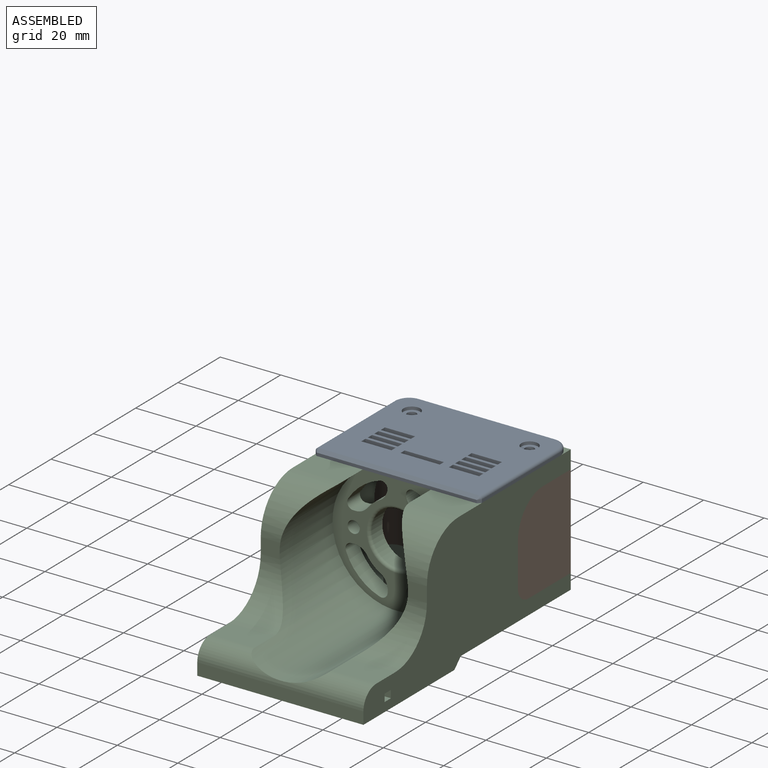
[diagram: assembled view]
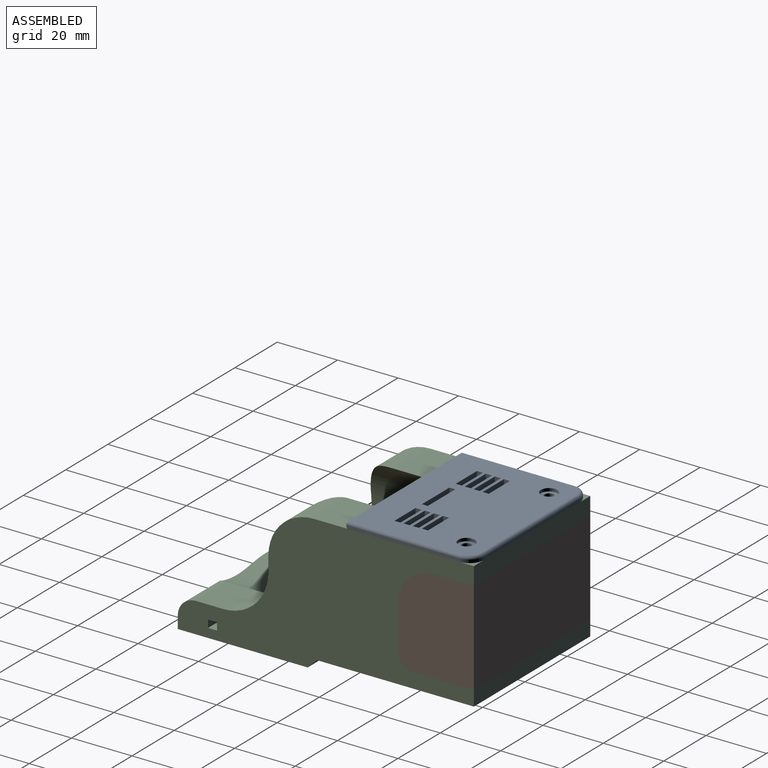
[diagram: assembled view, second angle]
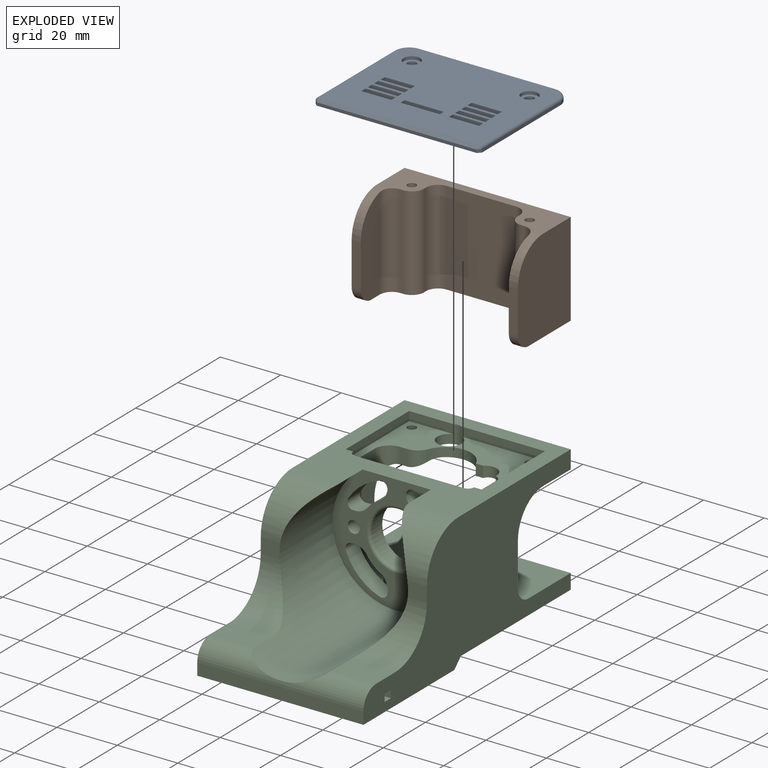
[diagram: exploded view]
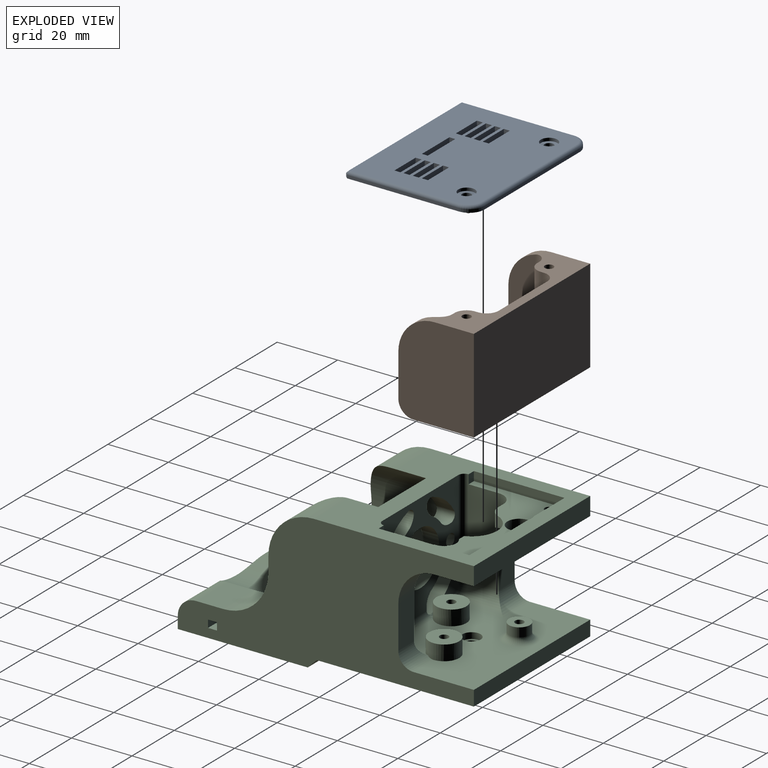
[diagram: exploded view, second angle]
ASSEMBLY  parts=3 mates=2
PART A: 84 faces, bbox 55.8x43.4x7 mm
  f0: cylinder r=1.5mm len=4mm, axis (0,0,-1), area 37.7mm2, adj f3,f82
  f1: cylinder r=1.5mm len=4mm, axis (0,0,-1), area 37.7mm2, adj f3,f80
  f2: plane 53x41mm, normal (0,0,-1), area 1933.4mm2, adj f32,f33,f34,f35,f36,f38,f39,f40
  f3: plane 43x28mm, normal (0,0,1), area 780.3mm2, adj f0,f1,f12,f23,f24,f28,f29,f38
  f4: plane 37x1mm, normal (1,0,0), area 37mm2, adj f7,f19,f36,f79
  f5: plane 37x1mm, normal (-1,0,0), area 37mm2, adj f7,f18,f32,f75
  f6: plane 45x1mm, normal (0,-1,0), area 45mm2, adj f7,f18,f19,f34
  f7: plane 55x43mm, normal (0,0,1), area 1004.1mm2, adj f4,f5,f6,f8,f9,f10,f11,f18
  f8: plane 28x2mm, normal (-1,0,0), area 56mm2, adj f7,f22,f28,f31
  f9: plane 43x2mm, normal (0,-1,0), area 86mm2, adj f7,f25,f29,f31
  f10: plane 28x2mm, normal (1,0,0), area 56mm2, adj f7,f20,f24,f25
  f11: plane 43x2mm, normal (0,1,0), area 86mm2, adj f7,f20,f22,f23
  f12: cylinder r=8.45mm len=16.9mm, axis (0,0,-1), area 53.1mm2, adj f3,f37
  f13: plane 14.9x14.9mm, normal (0,0,1), area 146.1mm2, adj f14,f37
  f14: cylinder r=3mm len=6mm, axis (0,0,1), area 37.7mm2, adj f13,f15
  f15: plane 6x6mm, normal (0,0,1), area 21.2mm2, adj f14,f16
  f16: cylinder r=1.5mm len=3mm, axis (0,0,1), area 9.4mm2, adj f15,f17
  f17: plane 3x3mm, normal (0,0,1), area 7.1mm2, adj f16
  f18: cylinder r=5mm len=5mm, axis (0,0,1), area 7.9mm2, adj f5,f6,f7,f33
  f19: cylinder r=5mm len=5mm, axis (0,0,-1), area 7.9mm2, adj f4,f6,f7,f35
  f20: cylinder r=1mm len=2mm, axis (0,0,-1), area 3.1mm2, adj f7,f10,f11,f21
  f21: sphere r=1mm, area 1.6mm2, adj f20,f23,f24
  f22: cylinder r=1mm len=2mm, axis (0,0,1), area 3.1mm2, adj f7,f8,f11,f26
  f23: cylinder r=1mm len=43mm, axis (1,0,0), area 67.5mm2, adj f3,f11,f21,f26
  f24: cylinder r=1mm len=28mm, axis (0,-1,0), area 44mm2, adj f3,f10,f21,f27
  f25: cylinder r=1mm len=2mm, axis (0,0,1), area 3.1mm2, adj f7,f9,f10,f27
  f26: sphere r=1mm, area 1.6mm2, adj f22,f23,f28
  f27: sphere r=1mm, area 1.6mm2, adj f24,f25,f29
  f28: cylinder r=1mm len=28mm, axis (0,1,0), area 44mm2, adj f3,f8,f26,f30
  f29: cylinder r=1mm len=43mm, axis (-1,0,0), area 67.5mm2, adj f3,f9,f27,f30
  f30: sphere r=1mm, area 1.6mm2, adj f28,f29,f31
  f31: cylinder r=1mm len=2mm, axis (0,0,-1), area 3.1mm2, adj f7,f8,f9,f30
  f32: cylinder r=1mm len=37mm, axis (0,1,0), area 58.1mm2, adj f2,f5,f33,f76
  f33: torus R=4mm, axis (0,0,1), area 11.4mm2, adj f2,f18,f32,f34
  f34: cylinder r=1mm len=45mm, axis (-1,0,0), area 70.7mm2, adj f2,f6,f33,f35
  f35: torus R=4mm, axis (0,0,1), area 11.4mm2, adj f2,f19,f34,f36
  f36: cylinder r=1mm len=37mm, axis (0,-1,0), area 58.1mm2, adj f2,f4,f35,f78
  f37: torus R=7.45mm, axis (0,0,1), area 79.8mm2, adj f12,f13
  f38: plane 10x5mm, normal (0,-1,0), area 50mm2, adj f2,f3,f39,f41
  f39: plane 5x2mm, normal (1,0,0), area 10mm2, adj f2,f3,f38,f40
  f40: plane 10x5mm, normal (0,1,0), area 50mm2, adj f2,f3,f39,f41
  f41: plane 5x2mm, normal (-1,0,0), area 10mm2, adj f2,f3,f38,f40
  f42: plane 10x5mm, normal (0,-1,0), area 50mm2, adj f2,f3,f43,f45
  f43: plane 5x2mm, normal (1,0,0), area 10mm2, adj f2,f3,f42,f44
  f44: plane 10x5mm, normal (0,1,0), area 50mm2, adj f2,f3,f43,f45
  f45: plane 5x2mm, normal (-1,0,0), area 10mm2, adj f2,f3,f42,f44
  f46: plane 5x2mm, normal (-1,0,0), area 10mm2, adj f2,f3,f47,f49
  f47: plane 10x5mm, normal (0,-1,0), area 50mm2, adj f2,f3,f46,f48
  f48: plane 5x2mm, normal (1,0,0), area 10mm2, adj f2,f3,f47,f49
  f49: plane 10x5mm, normal (0,1,0), area 50mm2, adj f2,f3,f46,f48
  f50: plane 10x5mm, normal (0,-1,0), area 50mm2, adj f2,f3,f51,f53
  f51: plane 5x2mm, normal (1,0,0), area 10mm2, adj f2,f3,f50,f52
  f52: plane 10x5mm, normal (0,1,0), area 50mm2, adj f2,f3,f51,f53
  f53: plane 5x2mm, normal (-1,0,0), area 10mm2, adj f2,f3,f50,f52
  f54: plane 13x5mm, normal (0,-1,0), area 65mm2, adj f2,f3,f55,f57
  f55: plane 5x1.94mm, normal (1,0,0), area 9.7mm2, adj f2,f3,f54,f56
  f56: plane 13x5mm, normal (0,1,0), area 65mm2, adj f2,f3,f55,f57
  f57: plane 5x1.94mm, normal (-1,0,0), area 9.7mm2, adj f2,f3,f54,f56
  f58: plane 10x5mm, normal (0,-1,0), area 50mm2, adj f2,f3,f59,f61
  f59: plane 5x2mm, normal (1,0,0), area 10mm2, adj f2,f3,f58,f60
  f60: plane 10x5mm, normal (0,1,0), area 50mm2, adj f2,f3,f59,f61
  f61: plane 5x2mm, normal (-1,0,0), area 10mm2, adj f2,f3,f58,f60
  f62: plane 10x5mm, normal (0,-1,0), area 50mm2, adj f2,f3,f63,f65
  f63: plane 5x2mm, normal (1,0,0), area 10mm2, adj f2,f3,f62,f64
  f64: plane 10x5mm, normal (0,1,0), area 50mm2, adj f2,f3,f63,f65
  f65: plane 5x2mm, normal (-1,0,0), area 10mm2, adj f2,f3,f62,f64
  f66: plane 10x5mm, normal (0,-1,0), area 50mm2, adj f2,f3,f67,f69
  f67: plane 5x2mm, normal (1,0,0), area 10mm2, adj f2,f3,f66,f68
  f68: plane 10x5mm, normal (0,1,0), area 50mm2, adj f2,f3,f67,f69
  f69: plane 5x2mm, normal (-1,0,0), area 10mm2, adj f2,f3,f66,f68
  f70: plane 5x2mm, normal (-1,0,0), area 10mm2, adj f2,f3,f71,f73
  f71: plane 10x5mm, normal (0,-1,0), area 50mm2, adj f2,f3,f70,f72
  f72: plane 5x2mm, normal (1,0,0), area 10mm2, adj f2,f3,f71,f73
  f73: plane 10x5mm, normal (0,1,0), area 50mm2, adj f2,f3,f70,f72
  f74: plane 53x1mm, normal (0,1,0), area 53mm2, adj f7,f75,f77,f79
  f75: plane 1x1mm, normal (-0.71,0.71,0), area 1.4mm2, adj f5,f7,f74,f76
  f76: cone r=1mm half-angle=45deg, axis (0,-1,0), area 1.1mm2, adj f32,f75,f77
  f77: plane 53x1mm, normal (0,0.71,-0.71), area 75mm2, adj f2,f74,f76,f78
  f78: cone r=1mm half-angle=45deg, axis (0,-1,0), area 1.1mm2, adj f36,f77,f79
  f79: plane 1x1mm, normal (0.71,0.71,0), area 1.4mm2, adj f4,f7,f74,f78
  f80: plane 5.5x5.5mm, normal (0,0,-1), area 16.7mm2, adj f1,f81
  f81: cylinder r=2.75mm len=5.5mm, axis (0,0,-1), area 17.3mm2, adj f2,f80
  f82: plane 5.5x5.5mm, normal (0,0,-1), area 16.7mm2, adj f0,f83
  f83: cylinder r=2.75mm len=5.5mm, axis (0,0,-1), area 17.3mm2, adj f2,f82
PART B: 26 faces, bbox 55x25x31 mm
  f0: plane 55x13mm, normal (0,0,-1), area 378.6mm2, adj f2,f3,f4,f5,f10,f11,f12,f13
  f1: plane 55x20mm, normal (0,0,1), area 423.1mm2, adj f2,f3,f4,f5,f6,f8,f10,f11
  f2: plane 31x23mm, normal (0,-1,0), area 713mm2, adj f0,f1,f16,f19
  f3: plane 31x25mm, normal (1,0,0), area 738.7mm2, adj f0,f1,f5,f9,f22,f24
  f4: plane 31x25mm, normal (-1,0,0), area 738.7mm2, adj f0,f1,f5,f7,f23,f25
  f5: plane 55x31mm, normal (0,1,0), area 1705mm2, adj f0,f1,f3,f4
  f6: plane 30.62x9mm, normal (1,0,0), area 243.1mm2, adj f1,f7,f18,f23,f25
  f7: plane 14x3mm, normal (0,-1,0), area 42mm2, adj f4,f6,f23,f25
  f8: plane 30.62x9mm, normal (-1,0,0), area 243.1mm2, adj f1,f9,f20,f22,f24
  f9: plane 14x3mm, normal (0,-1,0), area 42mm2, adj f3,f8,f22,f24
  f10: plane 31x1mm, normal (1,0,0), area 31mm2, adj f0,f1,f16,f17
  f11: plane 31x1mm, normal (0,-1,0), area 31mm2, adj f0,f1,f17,f18
  f12: plane 31x1mm, normal (-1,0,0), area 31mm2, adj f0,f1,f19,f21
  f13: plane 31x1mm, normal (0,-1,0), area 31mm2, adj f0,f1,f20,f21
  f14: cylinder r=1.43mm len=31mm, axis (0,0,-1), area 277.6mm2, adj f0,f1
  f15: cylinder r=1.43mm len=31mm, axis (0,0,-1), area 277.6mm2, adj f0,f1
  f16: cylinder r=4mm len=31mm, axis (0,0,1), area 194.8mm2, adj f0,f1,f2,f10
  f17: cylinder r=4mm len=31mm, axis (0,0,-1), area 194.8mm2, adj f0,f1,f10,f11
  f18: cylinder r=4mm len=31mm, axis (0,0,1), area 194.4mm2, adj f0,f1,f6,f11,f25
  f19: cylinder r=4mm len=31mm, axis (0,0,-1), area 194.8mm2, adj f0,f1,f2,f12
  f20: cylinder r=4mm len=31mm, axis (0,0,-1), area 194.4mm2, adj f0,f1,f8,f13,f24
  f21: cylinder r=4mm len=31mm, axis (0,0,1), area 194.8mm2, adj f0,f1,f12,f13
  f22: cylinder r=5mm len=5mm, axis (-1,0,0), area 23.6mm2, adj f1,f3,f8,f9
  f23: cylinder r=5mm len=5mm, axis (-1,0,0), area 23.6mm2, adj f1,f4,f6,f7
  f24: cylinder r=12mm len=12mm, axis (1,0,0), area 57.8mm2, adj f0,f3,f8,f9,f20
  f25: cylinder r=12mm len=12mm, axis (1,0,0), area 57.8mm2, adj f0,f4,f6,f7,f18
PART C: 119 faces, bbox 55x98x45 mm
  f0: cylinder r=4mm len=6.62mm, axis (0,0,1), area 44.1mm2, adj f5,f97,f108,f115
  f1: plane 98x45mm, normal (1,0,0), area 2445.5mm2, adj f8,f16,f17,f19,f22,f23,f26,f68
  f2: plane 5.25x2.46mm, normal (0,-1,0), area 12.9mm2, adj f6,f7,f97,f114
  f3: cylinder r=8.5mm len=15.84mm, axis (0,0,-1), area 64.5mm2, adj f7,f97,f107,f108,f114,f115
  f4: plane 29x10mm, normal (1,0,0), area 290mm2, adj f6,f11,f87,f97,f105
  f5: cylinder r=5mm len=15mm, axis (0,0,-1), area 59.8mm2, adj f0,f15,f97,f115
  f6: cylinder r=5mm len=15mm, axis (0,0,1), area 79.5mm2, adj f2,f4,f97,f114
  f7: cylinder r=5mm len=5.25mm, axis (0,0,-1), area 26.5mm2, adj f2,f3,f97,f114
  f8: plane 55x6mm, normal (0,1,0), area 330mm2, adj f1,f14,f16,f107
  f9: cylinder r=4mm len=8mm, axis (0,0,1), area 84.1mm2, adj f16,f93,f94,f97,f107
  f10: cylinder r=5mm len=12.61mm, axis (0,-1,0), area 89.3mm2, adj f15,f23,f78,f111,f118
  f11: cylinder r=5mm len=15mm, axis (0,1,0), area 98.2mm2, adj f4,f23,f86,f117
  f12: cylinder r=1.45mm len=3mm, axis (0,0,1), area 27.3mm2, adj f97,f107
  f13: cylinder r=1.45mm len=3mm, axis (0,0,1), area 27.3mm2, adj f97,f107
  f14: plane 98x45mm, normal (-1,0,0), area 2445.5mm2, adj f8,f16,f17,f18,f22,f23,f26,f67
  f15: plane 29x10mm, normal (-1,0,0), area 290mm2, adj f5,f10,f77,f97,f106
  f16: plane 55x53mm, normal (0,0,1), area 1260.3mm2, adj f1,f8,f9,f14,f20,f21,f36,f77
  f17: plane 55x43mm, normal (0,0,-1), area 1843.9mm2, adj f1,f14,f69,f70,f71,f72,f73,f75
  f18: plane 6.46x5mm, normal (0,-1,0), area 31.5mm2, adj f14,f36,f90,f91
  f19: plane 6.46x5mm, normal (0,-1,0), area 31.5mm2, adj f1,f36,f89,f92
  f20: plane 42.5x39.25mm, normal (0,-1,0), area 670.8mm2, adj f16,f29,f30,f36,f37,f38,f39,f40
  f21: plane 36x35mm, normal (0,1,0), area 630mm2, adj f16,f28,f29,f30,f37,f38,f39,f40
  f22: plane 55x5mm, normal (0,1,0), area 275mm2, adj f1,f14,f23,f26
  f23: plane 55x35.81mm, normal (0,0,1), area 1287mm2, adj f1,f10,f11,f14,f22,f27,f34,f79
  f24: plane 6x6mm, normal (0,0,1), area 15.7mm2, adj f25,f27
  f25: cylinder r=2mm len=4mm, axis (0,0,1), area 37.7mm2, adj f24,f26
  f26: plane 55x52mm, normal (0,0,-1), area 2828.3mm2, adj f1,f14,f22,f25,f31,f32,f33,f116
  f27: cylinder r=3mm len=6mm, axis (0,0,-1), area 37.7mm2, adj f23,f24
  f28: cylinder r=9mm len=18mm, axis (0,-1,0), area 282.7mm2, adj f21,f88
  f29: cylinder r=2mm len=6mm, axis (0,-1,0), area 75.4mm2, adj f20,f21
  f30: cylinder r=2mm len=6mm, axis (0,-1,0), area 75.4mm2, adj f20,f21
  f31: cylinder r=1.43mm len=10mm, axis (0,0,-1), area 89.5mm2, adj f26,f112
  f32: cylinder r=1.43mm len=10mm, axis (0,0,-1), area 89.5mm2, adj f26,f110
  f33: cylinder r=1.43mm len=10mm, axis (0,0,-1), area 89.5mm2, adj f26,f35
  f34: cylinder r=5mm len=10mm, axis (0,0,-1), area 156.8mm2, adj f23,f35,f83,f84,f85
  f35: plane 10x10mm, normal (0,0,1), area 72.2mm2, adj f33,f34
  f36: cylinder r=21.25mm len=54.74mm, axis (0,1,0), area 3520.1mm2, adj f16,f18,f19,f20,f67,f68,f89,f90
  f37: cylinder r=12.2mm len=6mm, axis (0,-1,0), area 31.7mm2, adj f20,f21,f57,f58
  f38: plane 6x0.72mm, normal (0,0,1), area 4.3mm2, adj f20,f21,f58,f66
  f39: cylinder r=18.87mm len=10.44mm, axis (0,-1,0), area 81.1mm2, adj f20,f21,f65,f66
  f40: plane 6x0.89mm, normal (1,0,0), area 5.4mm2, adj f20,f21,f56,f63
  f41: cylinder r=17.94mm len=11.2mm, axis (0,-1,0), area 96.6mm2, adj f20,f21,f63,f64,f80
  f42: plane 6x0.92mm, normal (0,0,-1), area 5.5mm2, adj f20,f21,f55,f64
  f43: cylinder r=11.54mm len=6mm, axis (0,-1,0), area 35.2mm2, adj f20,f21,f55,f56
  f44: cylinder r=11.54mm len=6mm, axis (0,-1,0), area 35.2mm2, adj f20,f21,f53,f54
  f45: plane 6x0.92mm, normal (0,0,-1), area 5.5mm2, adj f20,f21,f54,f62
  f46: cylinder r=17.94mm len=11.2mm, axis (0,-1,0), area 96.6mm2, adj f20,f21,f61,f62,f84
  f47: plane 6x0.89mm, normal (-1,0,0), area 5.4mm2, adj f20,f21,f53,f61
  f48: cylinder r=12.2mm len=6mm, axis (0,-1,0), area 31.7mm2, adj f20,f21,f51,f52
  f49: cylinder r=18.87mm len=10.44mm, axis (0,-1,0), area 81.1mm2, adj f20,f21,f59,f60
  f50: plane 6x0.72mm, normal (0,0,1), area 4.3mm2, adj f20,f21,f51,f59
  f51: cylinder r=5mm len=6mm, axis (0,-1,0), area 27.5mm2, adj f20,f21,f48,f50
  f52: cylinder r=5mm len=6mm, axis (0,-1,0), area 27.6mm2, adj f20,f21,f48,f60
  f53: cylinder r=5mm len=6mm, axis (0,-1,0), area 32mm2, adj f20,f21,f44,f47
  f54: cylinder r=5mm len=6mm, axis (0,-1,0), area 30.4mm2, adj f20,f21,f44,f45
  f55: cylinder r=5mm len=6mm, axis (0,-1,0), area 30.4mm2, adj f20,f21,f42,f43
  f56: cylinder r=5mm len=6mm, axis (0,-1,0), area 32mm2, adj f20,f21,f40,f43
  f57: cylinder r=5mm len=6mm, axis (0,-1,0), area 27.6mm2, adj f20,f21,f37,f65
  f58: cylinder r=5mm len=6mm, axis (0,-1,0), area 27.5mm2, adj f20,f21,f37,f38
  f59: cylinder r=2mm len=6mm, axis (0,-1,0), area 25.5mm2, adj f20,f21,f49,f50
  f60: cylinder r=2mm len=6mm, axis (0,1,0), area 24.5mm2, adj f20,f21,f49,f52
  f61: cylinder r=2mm len=6mm, axis (0,-1,0), area 22.7mm2, adj f20,f21,f46,f47,f83
  f62: cylinder r=2mm len=6mm, axis (0,-1,0), area 23.1mm2, adj f20,f21,f45,f46
  f63: cylinder r=2mm len=6mm, axis (0,-1,0), area 22.7mm2, adj f20,f21,f40,f41,f81
  f64: cylinder r=2mm len=6mm, axis (0,-1,0), area 23.1mm2, adj f20,f21,f41,f42
  f65: cylinder r=2mm len=6mm, axis (0,1,0), area 24.5mm2, adj f20,f21,f39,f57
  f66: cylinder r=2mm len=6mm, axis (0,-1,0), area 25.5mm2, adj f20,f21,f38,f39
  f67: plane 14.75x9mm, normal (0,0,1), area 132.7mm2, adj f14,f36,f90,f104
  f68: plane 14.75x9mm, normal (0,0,1), area 132.7mm2, adj f1,f36,f89,f104
  f69: plane 55x4mm, normal (0,-1,0), area 220mm2, adj f1,f14,f17,f104
  f70: plane 40x2mm, normal (0,1,0), area 80mm2, adj f17,f71,f73,f74
  f71: plane 8x2mm, normal (1,0,0), area 16mm2, adj f17,f70,f72,f74
  f72: plane 40x2mm, normal (0,-1,0), area 80mm2, adj f17,f71,f73,f74
  f73: plane 8x2mm, normal (-1,0,0), area 16mm2, adj f17,f70,f72,f74
  f74: plane 40x8mm, normal (0,0,-1), area 320mm2, adj f70,f71,f72,f73
  f75: cylinder r=8mm len=16mm, axis (0,0,-1), area 100.5mm2, adj f17,f76
  f76: plane 16x16mm, normal (0,0,-1), area 201.1mm2, adj f75
  f77: cylinder r=2mm len=32mm, axis (0,0,1), area 100.5mm2, adj f15,f16,f21,f78,f95
  f78: torus R=3mm, axis (0,1,0), area 21.1mm2, adj f10,f21,f77,f79
  f79: cylinder r=2mm len=6.01mm, axis (-1,0,0), area 18.9mm2, adj f21,f23,f78,f80
  f80: bspline ~3.86x2mm, area 8.1mm2, adj f23,f41,f79,f81
  f81: bspline ~3.03x2.05mm, area 4.4mm2, adj f23,f63,f80,f82
  f82: cylinder r=2mm len=6.08mm, axis (-1,0,0), area 19.1mm2, adj f21,f23,f81,f83
  f83: bspline ~3x2.05mm, area 3.9mm2, adj f23,f34,f61,f82,f84
  f84: bspline ~3.75x1.98mm, area 4.8mm2, adj f34,f46,f83,f85
  f85: cylinder r=2mm len=6.01mm, axis (-1,0,0), area 18.6mm2, adj f21,f23,f34,f84,f86
  f86: torus R=3mm, axis (0,1,0), area 21.1mm2, adj f11,f21,f85,f87
  f87: cylinder r=2mm len=32mm, axis (0,0,-1), area 100.5mm2, adj f4,f16,f21,f86,f96
  f88: torus R=10mm, axis (0,1,0), area 92.4mm2, adj f20,f28
  f89: cylinder r=15mm len=15mm, axis (-1,0,0), area 248.5mm2, adj f1,f19,f36,f68
  f90: cylinder r=15mm len=15mm, axis (-1,0,0), area 248.5mm2, adj f14,f18,f36,f67
  f91: cylinder r=15mm len=16.21mm, axis (-1,0,0), area 267.1mm2, adj f14,f16,f18,f36
  f92: cylinder r=15mm len=16.21mm, axis (-1,0,0), area 267.1mm2, adj f1,f16,f19,f36
  f93: plane 14.59x3mm, normal (0,-1,0), area 43.8mm2, adj f9,f16,f97,f99
  f94: plane 27.59x3mm, normal (0,-1,0), area 82.8mm2, adj f9,f16,f97,f98
  f95: plane 3x2.5mm, normal (0,1,0), area 7.5mm2, adj f16,f77,f97,f98
  f96: plane 3x2.5mm, normal (0,1,0), area 7.5mm2, adj f16,f87,f97,f99
  f97: plane 45x30mm, normal (0,0,1), area 552.8mm2, adj f0,f2,f3,f4,f5,f6,f7,f9
  f98: plane 30x3mm, normal (-1,0,0), area 90mm2, adj f16,f94,f95,f97
  f99: plane 30x3mm, normal (1,0,0), area 90mm2, adj f16,f93,f96,f97
  f100: plane 55x3mm, normal (0,0,-1), area 165mm2, adj f1,f14,f101,f103
  f101: plane 55x2.5mm, normal (0,1,0), area 137.5mm2, adj f1,f14,f100,f102
  f102: plane 55x3mm, normal (0,0,1), area 165mm2, adj f1,f14,f101,f103
  f103: plane 55x2.5mm, normal (0,-1,0), area 137.5mm2, adj f1,f14,f100,f102
  f104: cylinder r=6mm len=55mm, axis (1,0,0), area 365.8mm2, adj f1,f14,f36,f67,f68,f69
  f105: plane 14x7.5mm, normal (0,1,0), area 105mm2, adj f4,f14,f114,f117
  f106: plane 14x7.5mm, normal (0,1,0), area 105mm2, adj f1,f15,f115,f118
  f107: plane 55x13mm, normal (0,0,-1), area 641.7mm2, adj f1,f3,f8,f9,f12,f13,f14,f114
  f108: plane 3.68x2.43mm, normal (0,-1,0), area 9mm2, adj f0,f3,f97,f115
  f109: cylinder r=3.5mm len=7mm, axis (0,0,-1), area 66mm2, adj f110,f113
  f110: plane 7x7mm, normal (0,0,1), area 32.1mm2, adj f32,f109
  f111: cylinder r=5mm len=10mm, axis (0,0,-1), area 155.3mm2, adj f10,f23,f112,f118
  f112: plane 10x10mm, normal (0,0,1), area 72.2mm2, adj f31,f111
  f113: torus R=5.5mm, axis (0,0,1), area 83.4mm2, adj f23,f109
  f114: cylinder r=12mm len=22.68mm, axis (1,0,0), area 237.1mm2, adj f2,f3,f6,f7,f14,f105,f107
  f115: cylinder r=12mm len=22.68mm, axis (1,0,0), area 211.7mm2, adj f0,f1,f3,f5,f106,f107,f108
  f116: plane 55x3mm, normal (0,0.71,-0.71), area 233.3mm2, adj f1,f14,f17,f26
  f117: cylinder r=5mm len=12.5mm, axis (1,0,0), area 78.5mm2, adj f11,f14,f23,f105
  f118: cylinder r=5mm len=10.11mm, axis (1,0,0), area 71.6mm2, adj f1,f10,f23,f106,f111
PLACE A rot(axis=(1,0,0),180deg) t=(-38.08,23.75,33.95)mm
PLACE B rot(axis=(0,-1,0),180deg) t=(-38.08,40.75,12.45)mm
PLACE C t=(-38.08,23.75,-5.05)mm fixed
MATE fastened B.f15 <-> C.f12  axis (0,0,1) through (-57.58,35.75,27.95)mm
MATE fastened A.f0 <-> C.f12  axis (0,0,-1) through (-57.58,35.75,30.95)mm
